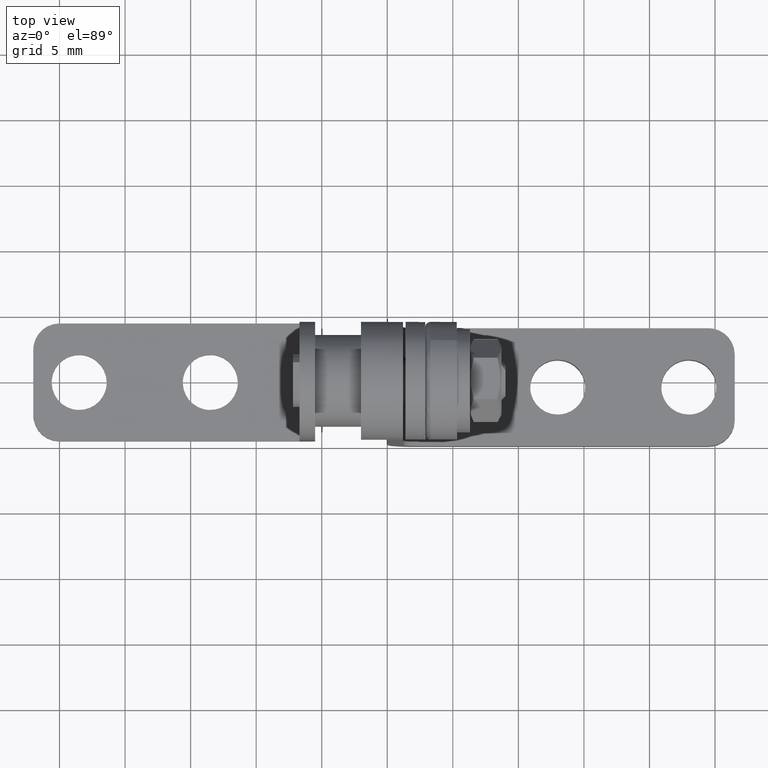
[diagram: clean part render]
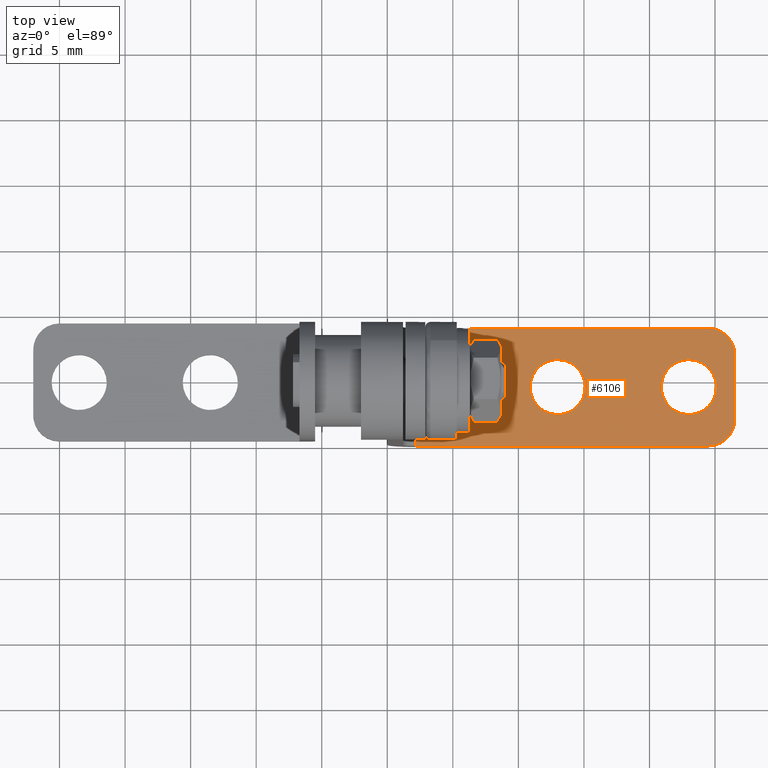
[diagram: same view with one face highlighted and labeled with its STEP entity id]
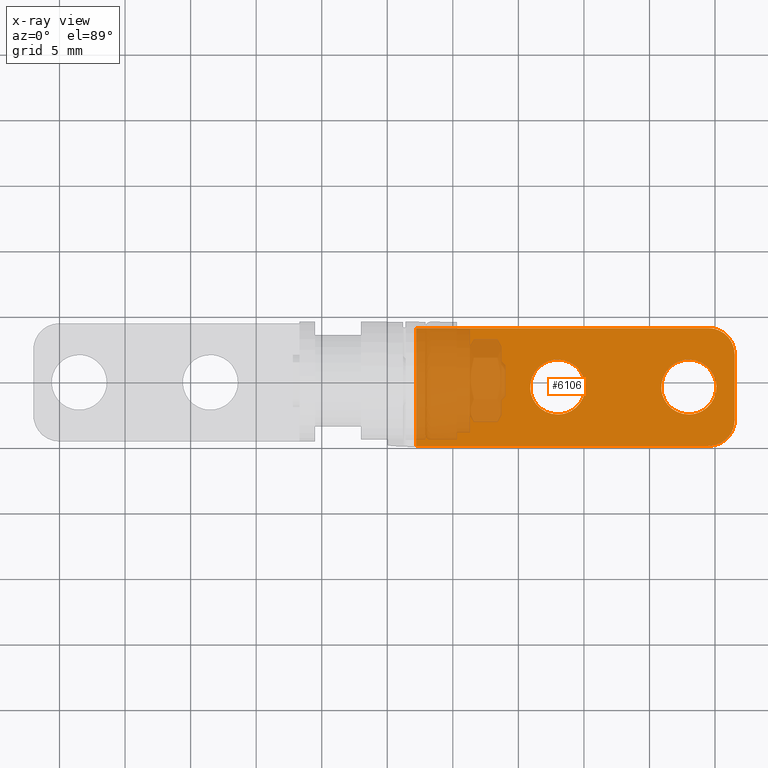
[diagram: x-ray of the same camera — body ghosted, the highlighted face saturated]
A machine part, top view. The second image highlights one B-rep face of the part: STEP entity #6106.
The next image is the same camera in x-ray: the body ghosted, the highlighted face saturated — about 26% of this face is hidden behind the body in this view.
In plain terms, the highlighted face is a freeform B-spline surface patch.
Its self-contained STEP definition (entity closure, byte-faithful):
#5243=CARTESIAN_POINT('',(15.096083076678690,-0.227858265604283,-6.797390407083054));
#5244=VERTEX_POINT('',#5243);
#5245=CARTESIAN_POINT('',(13.0,-2.453006525436611,-6.680775328209719));
#5246=VERTEX_POINT('',#5245);
#5247=CARTESIAN_POINT('',(15.096083076678687,-0.227858265604283,-6.797390407083053));
#5248=CARTESIAN_POINT('',(15.099999999999998,-0.291811629616270,-6.794038753297505));
#5249=CARTESIAN_POINT('',(15.100000000000000,-0.355884502452006,-6.790680836319900));
#5250=CARTESIAN_POINT('',(15.100000000000001,-2.453006525436611,-6.680775328209718));
#5251=CARTESIAN_POINT('',(13.0,-2.453006525436611,-6.680775328209719));
#5259=(BOUNDED_CURVE()B_SPLINE_CURVE(2,(#5247,#5248,#5249,#5250,#5251),.UNSPECIFIED.,.F.,.U.)B_SPLINE_CURVE_WITH_KNOTS((3,2,3),(0.239332962232231,0.250000000000000,0.500000000000000),.UNSPECIFIED.)CURVE()GEOMETRIC_REPRESENTATION_ITEM()RATIONAL_B_SPLINE_CURVE((0.976072041652333,0.987502787891974,1.0,0.707106781186548,1.0))REPRESENTATION_ITEM(''));
#5260=EDGE_CURVE('',#5244,#5246,#5259,.T.);
#5301=CARTESIAN_POINT('',(10.903916923321320,-0.483910739299729,-6.783971265556746));
#5302=VERTEX_POINT('',#5301);
#5308=CARTESIAN_POINT('',(13.0,-2.453006525436611,-6.680775328209719));
#5309=CARTESIAN_POINT('',(11.024517259609734,-2.453006525436611,-6.680775328209719));
#5310=CARTESIAN_POINT('',(10.903916923321320,-0.483910739299729,-6.783971265556747));
#5318=(BOUNDED_CURVE()B_SPLINE_CURVE(2,(#5308,#5309,#5310),.UNSPECIFIED.,.F.,.U.)B_SPLINE_CURVE_WITH_KNOTS((3,3),(0.500000000000000,0.739332962232231),.UNSPECIFIED.)CURVE()GEOMETRIC_REPRESENTATION_ITEM()RATIONAL_B_SPLINE_CURVE((1.0,0.719603993294574,0.976072041652332))REPRESENTATION_ITEM(''));
#5319=EDGE_CURVE('',#5246,#5302,#5318,.T.);
#5342=CARTESIAN_POINT('',(13.0,1.741237520532599,-6.900586344430082));
#5343=VERTEX_POINT('',#5342);
#5344=CARTESIAN_POINT('',(13.0,1.741237520532599,-6.900586344430082));
#5345=CARTESIAN_POINT('',(14.975482740390273,1.741237520532599,-6.900586344430081));
#5346=CARTESIAN_POINT('',(15.096083076678687,-0.227858265604283,-6.797390407083053));
#5354=(BOUNDED_CURVE()B_SPLINE_CURVE(2,(#5344,#5345,#5346),.UNSPECIFIED.,.F.,.U.)B_SPLINE_CURVE_WITH_KNOTS((3,3),(0.0,0.239332962232231),.UNSPECIFIED.)CURVE()GEOMETRIC_REPRESENTATION_ITEM()RATIONAL_B_SPLINE_CURVE((1.0,0.719603993294574,0.976072041652333))REPRESENTATION_ITEM(''));
#5355=EDGE_CURVE('',#5343,#5244,#5354,.T.);
#5357=CARTESIAN_POINT('',(10.903916923321320,-0.483910739299729,-6.783971265556747));
#5358=CARTESIAN_POINT('',(10.899999999999999,-0.419957375287742,-6.787322919342294));
#5359=CARTESIAN_POINT('',(10.900000000000000,-0.355884502452006,-6.790680836319900));
#5360=CARTESIAN_POINT('',(10.900000000000000,1.741237520532599,-6.900586344430081));
#5361=CARTESIAN_POINT('',(13.0,1.741237520532599,-6.900586344430082));
#5369=(BOUNDED_CURVE()B_SPLINE_CURVE(2,(#5357,#5358,#5359,#5360,#5361),.UNSPECIFIED.,.F.,.U.)B_SPLINE_CURVE_WITH_KNOTS((3,2,3),(0.739332962232231,0.750000000000000,1.0),.UNSPECIFIED.)CURVE()GEOMETRIC_REPRESENTATION_ITEM()RATIONAL_B_SPLINE_CURVE((0.976072041652332,0.987502787891974,1.0,0.707106781186548,1.0))REPRESENTATION_ITEM(''));
#5370=EDGE_CURVE('',#5302,#5343,#5369,.T.);
#5425=CARTESIAN_POINT('',(25.096083076678688,-0.227858265604283,-6.797390407083054));
#5426=VERTEX_POINT('',#5425);
#5427=CARTESIAN_POINT('',(23.0,-2.453006525436611,-6.680775328209719));
#5428=VERTEX_POINT('',#5427);
#5429=CARTESIAN_POINT('',(25.096083076678692,-0.227858265604283,-6.797390407083054));
#5430=CARTESIAN_POINT('',(25.100000000000001,-0.291811629616270,-6.794038753297506));
#5431=CARTESIAN_POINT('',(25.100000000000001,-0.355884502452006,-6.790680836319900));
#5432=CARTESIAN_POINT('',(25.099999999999994,-2.453006525436611,-6.680775328209718));
#5433=CARTESIAN_POINT('',(23.0,-2.453006525436611,-6.680775328209719));
#5441=(BOUNDED_CURVE()B_SPLINE_CURVE(2,(#5429,#5430,#5431,#5432,#5433),.UNSPECIFIED.,.F.,.U.)B_SPLINE_CURVE_WITH_KNOTS((3,2,3),(0.239332962232231,0.250000000000000,0.500000000000000),.UNSPECIFIED.)CURVE()GEOMETRIC_REPRESENTATION_ITEM()RATIONAL_B_SPLINE_CURVE((0.976072041652332,0.987502787891974,1.0,0.707106781186548,1.0))REPRESENTATION_ITEM(''));
#5442=EDGE_CURVE('',#5426,#5428,#5441,.T.);
#5483=CARTESIAN_POINT('',(20.903916923321319,-0.483910739299730,-6.783971265556746));
#5484=VERTEX_POINT('',#5483);
#5490=CARTESIAN_POINT('',(23.0,-2.453006525436611,-6.680775328209719));
#5491=CARTESIAN_POINT('',(21.024517259609723,-2.453006525436611,-6.680775328209719));
#5492=CARTESIAN_POINT('',(20.903916923321308,-0.483910739299729,-6.783971265556747));
#5500=(BOUNDED_CURVE()B_SPLINE_CURVE(2,(#5490,#5491,#5492),.UNSPECIFIED.,.F.,.U.)B_SPLINE_CURVE_WITH_KNOTS((3,3),(0.500000000000000,0.739332962232231),.UNSPECIFIED.)CURVE()GEOMETRIC_REPRESENTATION_ITEM()RATIONAL_B_SPLINE_CURVE((1.0,0.719603993294574,0.976072041652332))REPRESENTATION_ITEM(''));
#5501=EDGE_CURVE('',#5428,#5484,#5500,.T.);
#5524=CARTESIAN_POINT('',(23.0,1.741237520532599,-6.900586344430082));
#5525=VERTEX_POINT('',#5524);
#5526=CARTESIAN_POINT('',(23.0,1.741237520532599,-6.900586344430082));
#5527=CARTESIAN_POINT('',(24.975482740390262,1.741237520532599,-6.900586344430081));
#5528=CARTESIAN_POINT('',(25.096083076678688,-0.227858265604283,-6.797390407083053));
#5536=(BOUNDED_CURVE()B_SPLINE_CURVE(2,(#5526,#5527,#5528),.UNSPECIFIED.,.F.,.U.)B_SPLINE_CURVE_WITH_KNOTS((3,3),(0.0,0.239332962232231),.UNSPECIFIED.)CURVE()GEOMETRIC_REPRESENTATION_ITEM()RATIONAL_B_SPLINE_CURVE((1.0,0.719603993294574,0.976072041652333))REPRESENTATION_ITEM(''));
#5537=EDGE_CURVE('',#5525,#5426,#5536,.T.);
#5539=CARTESIAN_POINT('',(20.903916923321308,-0.483910739299729,-6.783971265556747));
#5540=CARTESIAN_POINT('',(20.899999999999999,-0.419957375287742,-6.787322919342294));
#5541=CARTESIAN_POINT('',(20.899999999999999,-0.355884502452006,-6.790680836319900));
#5542=CARTESIAN_POINT('',(20.899999999999995,1.741237520532599,-6.900586344430081));
#5543=CARTESIAN_POINT('',(23.0,1.741237520532599,-6.900586344430082));
#5551=(BOUNDED_CURVE()B_SPLINE_CURVE(2,(#5539,#5540,#5541,#5542,#5543),.UNSPECIFIED.,.F.,.U.)B_SPLINE_CURVE_WITH_KNOTS((3,2,3),(0.739332962232231,0.750000000000000,1.0),.UNSPECIFIED.)CURVE()GEOMETRIC_REPRESENTATION_ITEM()RATIONAL_B_SPLINE_CURVE((0.976072041652332,0.987502787891974,1.0,0.707106781186548,1.0))REPRESENTATION_ITEM(''));
#5552=EDGE_CURVE('',#5484,#5525,#5551,.T.);
#5908=CARTESIAN_POINT('',(2.200000000000090,-4.849717408847610,-6.555169033226860));
#5909=VERTEX_POINT('',#5908);
#5923=CARTESIAN_POINT('',(2.200000000000090,4.137948403943440,-7.026192639413440));
#5924=VERTEX_POINT('',#5923);
#5925=CARTESIAN_POINT('',(2.200000000000090,4.137948403943440,-7.026192639413440));
#5926=CARTESIAN_POINT('',(2.200000000000090,-4.849717408847610,-6.555169033226860));
#5927=QUASI_UNIFORM_CURVE('',1,(#5925,#5926),.UNSPECIFIED.,.F.,.U.);
#5928=EDGE_CURVE('',#5924,#5909,#5927,.T.);
#5961=CARTESIAN_POINT('',(24.500000000000000,-4.849717408847610,-6.555169033226860));
#5962=VERTEX_POINT('',#5961);
#5963=CARTESIAN_POINT('',(26.500000000000000,-2.852458339338460,-6.659840945712769));
#5964=VERTEX_POINT('',#5963);
#5965=CARTESIAN_POINT('',(24.500000000000000,-4.849717408847610,-6.555169033226860));
#5966=CARTESIAN_POINT('',(24.614535020007821,-4.849723561229001,-6.555168710794222));
#5967=CARTESIAN_POINT('',(24.868151086209899,-4.827908634384936,-6.556311982665323));
#5968=CARTESIAN_POINT('',(25.287637509357030,-4.709273733580573,-6.562529374361962));
#5969=CARTESIAN_POINT('',(25.697081313535069,-4.477625958483217,-6.574669519830664));
#5970=CARTESIAN_POINT('',(26.030909215174962,-4.160191362089312,-6.591305562095292));
#5971=CARTESIAN_POINT('',(26.240164323134930,-3.855558548411970,-6.607270691356881));
#5972=CARTESIAN_POINT('',(26.437463912134330,-3.432407855593610,-6.629447079469559));
#5973=CARTESIAN_POINT('',(26.500231776881151,-3.097602169118297,-6.646993501988920));
#5974=CARTESIAN_POINT('',(26.500000000000000,-2.852458339338460,-6.659840945712769));
#5975=B_SPLINE_CURVE_WITH_KNOTS('',3,(#5965,#5966,#5967,#5968,#5969,#5970,#5971,#5972,#5973,#5974),.UNSPECIFIED.,.F.,.U.,(4,1,1,1,1,1,1,4),(0.000000065944002,0.343608930916290,0.760858932084940,1.300838391165687,1.742605939128856,2.135308839213647,2.405298203171114,3.141612365755682),.UNSPECIFIED.);
#5976=EDGE_CURVE('',#5962,#5964,#5975,.T.);
#6039=CARTESIAN_POINT('',(24.500000000000000,4.137948403943440,-7.026192639413440));
#6040=VERTEX_POINT('',#6039);
#6046=CARTESIAN_POINT('',(26.500000000000000,2.140689334434290,-6.921520726927530));
#6047=VERTEX_POINT('',#6046);
#6048=CARTESIAN_POINT('',(26.500000000000000,2.140689334434290,-6.921520726927530));
#6049=CARTESIAN_POINT('',(26.500000000000252,4.137948403943438,-7.026192639413440));
#6050=CARTESIAN_POINT('',(24.500000000000249,4.137948403943437,-7.026192639413440));
#6058=(BOUNDED_CURVE()B_SPLINE_CURVE(2,(#6048,#6049,#6050),.UNSPECIFIED.,.F.,.U.)CURVE()GEOMETRIC_REPRESENTATION_ITEM()QUASI_UNIFORM_CURVE()RATIONAL_B_SPLINE_CURVE((1.0,0.707106781186548,1.0))REPRESENTATION_ITEM(''));
#6059=EDGE_CURVE('',#6047,#6040,#6058,.T.);
#6069=CARTESIAN_POINT('',(0.986215047098213,-5.298651298776684,-6.531641405010775));
#6070=CARTESIAN_POINT('',(0.986215047098213,4.586882534940496,-7.049720280263371));
#6071=CARTESIAN_POINT('',(27.713785604678669,-5.298651298776684,-6.531641405010775));
#6072=CARTESIAN_POINT('',(27.713785604678669,4.586882534940495,-7.049720280263371));
#6073=B_SPLINE_SURFACE_WITH_KNOTS('',1,1,((#6069,#6071),(#6070,#6072)),.UNSPECIFIED.,.F.,.F.,.U.,(2,2),(2,2),(0.0,9.899100206511200),(0.0,26.727570557580460),.UNSPECIFIED.);
#6074=CARTESIAN_POINT('',(2.200000000000090,4.137948403943440,-7.026192639413440));
#6075=CARTESIAN_POINT('',(24.500000000000000,4.137948403943440,-7.026192639413440));
#6076=QUASI_UNIFORM_CURVE('',1,(#6074,#6075),.UNSPECIFIED.,.F.,.U.);
#6077=EDGE_CURVE('',#5924,#6040,#6076,.T.);
#6078=ORIENTED_EDGE('',*,*,#6077,.F.);
#6079=ORIENTED_EDGE('',*,*,#5928,.T.);
#6080=CARTESIAN_POINT('',(2.200000000000090,-4.849717408847610,-6.555169033226860));
#6081=CARTESIAN_POINT('',(24.500000000000000,-4.849717408847610,-6.555169033226860));
#6082=QUASI_UNIFORM_CURVE('',1,(#6080,#6081),.UNSPECIFIED.,.F.,.U.);
#6083=EDGE_CURVE('',#5909,#5962,#6082,.T.);
#6084=ORIENTED_EDGE('',*,*,#6083,.T.);
#6085=ORIENTED_EDGE('',*,*,#5976,.T.);
#6086=CARTESIAN_POINT('',(26.500000000000000,-2.852458339338460,-6.659840945712769));
#6087=CARTESIAN_POINT('',(26.500000000000000,2.140689334434290,-6.921520726927530));
#6088=QUASI_UNIFORM_CURVE('',1,(#6086,#6087),.UNSPECIFIED.,.F.,.U.);
#6089=EDGE_CURVE('',#5964,#6047,#6088,.T.);
#6090=ORIENTED_EDGE('',*,*,#6089,.T.);
#6091=ORIENTED_EDGE('',*,*,#6059,.T.);
#6092=EDGE_LOOP('',(#6078,#6079,#6084,#6085,#6090,#6091));
#6093=FACE_OUTER_BOUND('',#6092,.T.);
#6094=ORIENTED_EDGE('',*,*,#5501,.T.);
#6095=ORIENTED_EDGE('',*,*,#5552,.T.);
#6096=ORIENTED_EDGE('',*,*,#5537,.T.);
#6097=ORIENTED_EDGE('',*,*,#5442,.T.);
#6098=EDGE_LOOP('',(#6094,#6095,#6096,#6097));
#6099=FACE_BOUND('',#6098,.T.);
#6100=ORIENTED_EDGE('',*,*,#5319,.T.);
#6101=ORIENTED_EDGE('',*,*,#5370,.T.);
#6102=ORIENTED_EDGE('',*,*,#5355,.T.);
#6103=ORIENTED_EDGE('',*,*,#5260,.T.);
#6104=EDGE_LOOP('',(#6100,#6101,#6102,#6103));
#6105=FACE_BOUND('',#6104,.T.);
#6106=ADVANCED_FACE('',(#6093,#6099,#6105),#6073,.F.);